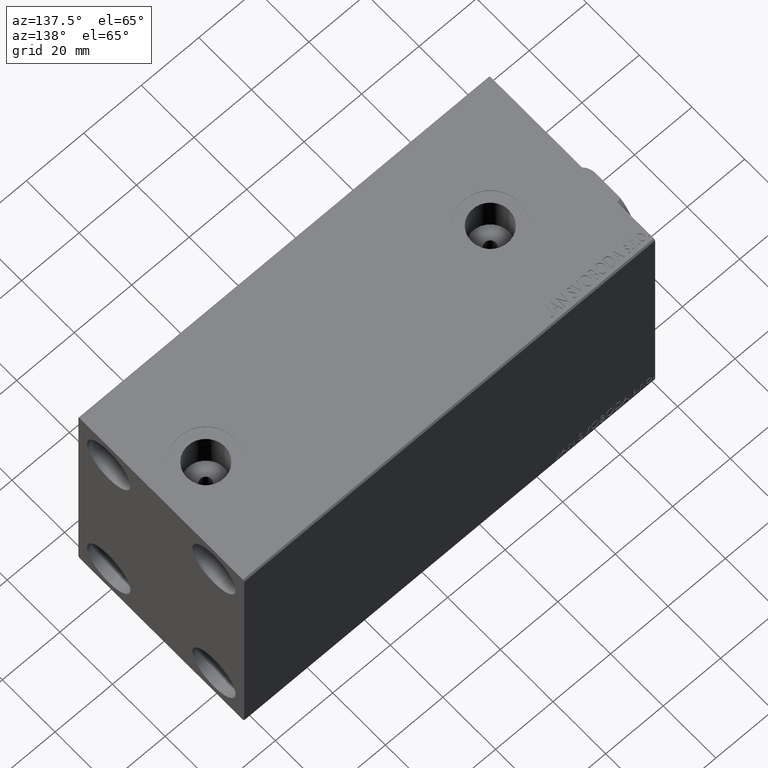
[diagram: clean part render]
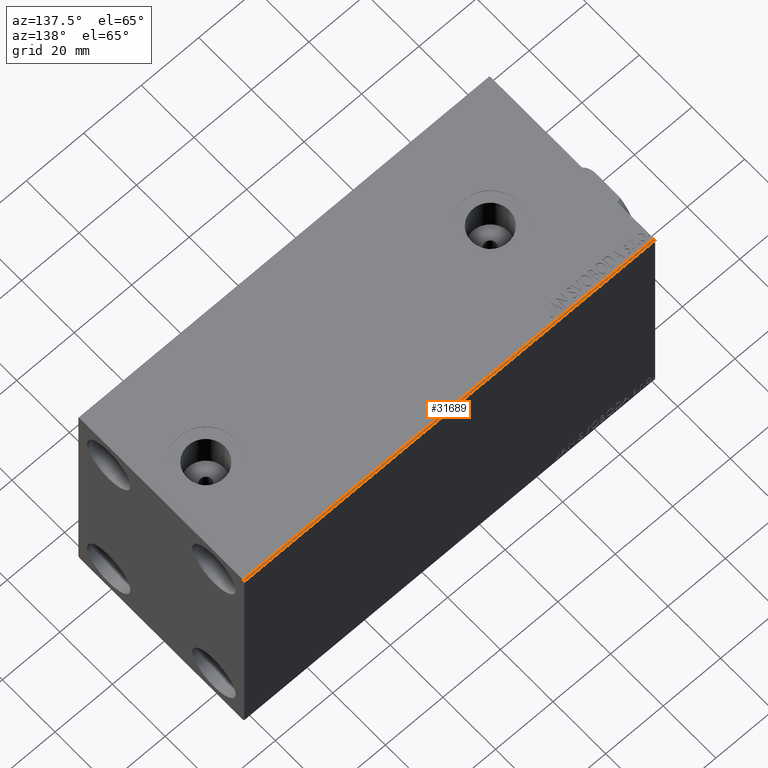
[diagram: same view with one face highlighted and labeled with its STEP entity id]
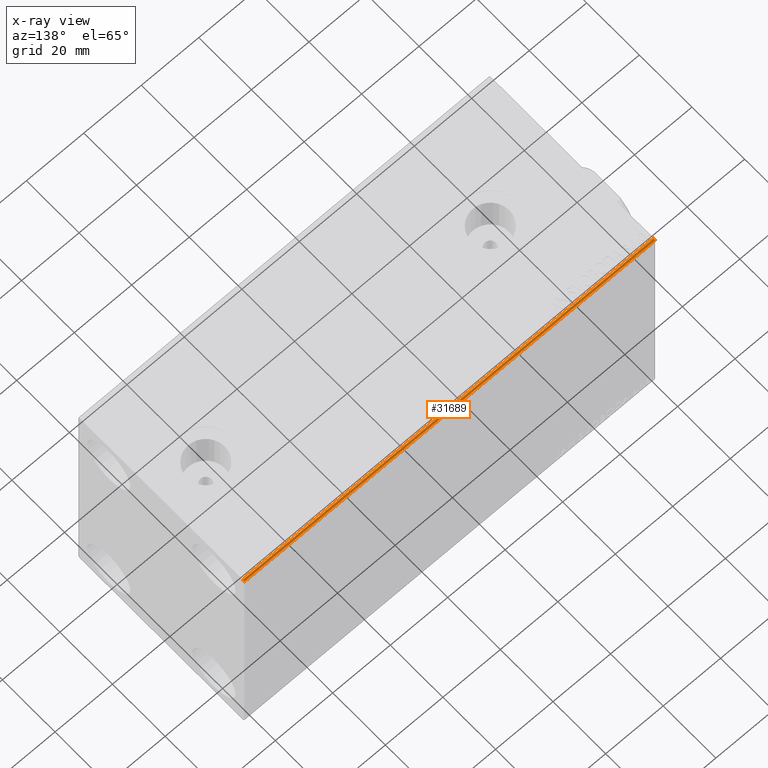
[diagram: x-ray of the same camera — body ghosted, the highlighted face saturated]
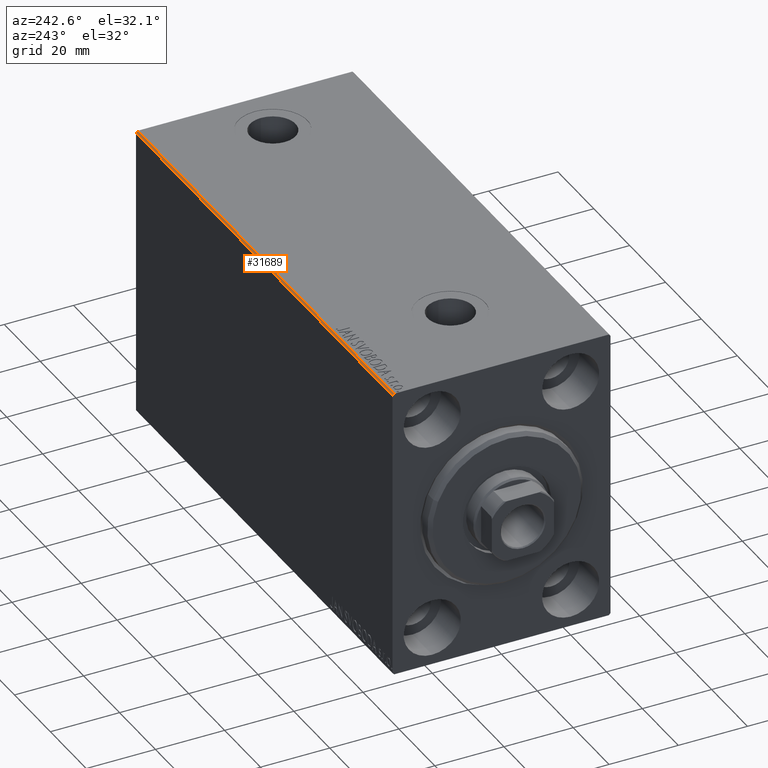
[diagram: same view with one face highlighted and labeled with its STEP entity id]
A machine part, auxiliary view. The second image highlights one B-rep face of the part: STEP entity #31689.
The next image is the same camera in x-ray: the body ghosted, the highlighted face saturated — about 0% of this face is hidden behind the body in this view.
A second angle (auxiliary view) of the same face is appended — the face is thin or edge-on in the first view.
In plain terms, the highlighted planar face has unit normal (-0, -0.7071, -0.7071).
Its self-contained STEP definition (entity closure, byte-faithful):
#281 = CARTESIAN_POINT ( 'NONE',  ( 143.0000000000000000, 31.00000000000002842, 42.50000000000000711 ) ) ;
#1971 = VECTOR ( 'NONE', #43266, 1000.000000000000000 ) ;
#3407 = EDGE_CURVE ( 'NONE', #39728, #28543, #28463, .T. ) ;
#3637 = LINE ( 'NONE', #281, #5047 ) ;
#3683 = CARTESIAN_POINT ( 'NONE',  ( 0.000000000000000000, 31.00000000000002842, 42.50000000000000711 ) ) ;
#4317 = ORIENTED_EDGE ( 'NONE', *, *, #3407, .F. ) ;
#4463 = VERTEX_POINT ( 'NONE', #30065 ) ;
#4521 = LINE ( 'NONE', #27853, #22523 ) ;
#5047 = VECTOR ( 'NONE', #20533, 1000.000000000000000 ) ;
#5059 = FACE_OUTER_BOUND ( 'NONE', #42969, .T. ) ;
#5511 = EDGE_CURVE ( 'NONE', #40923, #39728, #26376, .T. ) ;
#5599 = ORIENTED_EDGE ( 'NONE', *, *, #39076, .F. ) ;
#6851 = ORIENTED_EDGE ( 'NONE', *, *, #20388, .F. ) ;
#6991 = CARTESIAN_POINT ( 'NONE',  ( 0.000000000000000000, 31.00000000000002842, 42.50000000000000711 ) ) ;
#8697 = CARTESIAN_POINT ( 'NONE',  ( 143.0000000000000000, 31.50000000000000000, 42.00000000000000711 ) ) ;
#12171 = DIRECTION ( 'NONE',  ( -0.000000000000000000, -0.7071067811865671127, -0.7071067811865279218 ) ) ;
#13568 = VECTOR ( 'NONE', #18250, 1000.000000000000000 ) ;
#15671 = CARTESIAN_POINT ( 'NONE',  ( 143.0000000000000000, 31.50000000000000000, 42.00000000000000711 ) ) ;
#18084 = DIRECTION ( 'NONE',  ( -0.000000000000000000, -0.7071067811865279218, 0.7071067811865671127 ) ) ;
#18250 = DIRECTION ( 'NONE',  ( 1.000000000000000000, 0.000000000000000000, 0.000000000000000000 ) ) ;
#20388 = EDGE_CURVE ( 'NONE', #4463, #40923, #3637, .T. ) ;
#20533 = DIRECTION ( 'NONE',  ( -1.000000000000000000, 0.000000000000000000, 0.000000000000000000 ) ) ;
#22287 = AXIS2_PLACEMENT_3D ( 'NONE', #28840, #12171, #25736 ) ;
#22523 = VECTOR ( 'NONE', #18084, 1000.000000000000000 ) ;
#25736 = DIRECTION ( 'NONE',  ( -1.000000000000000000, 0.000000000000000000, 0.000000000000000000 ) ) ;
#25964 = PLANE ( 'NONE',  #22287 ) ;
#26376 = LINE ( 'NONE', #6991, #1971 ) ;
#27853 = CARTESIAN_POINT ( 'NONE',  ( 143.0000000000000000, 36.75000000000088107, 36.74999999999884182 ) ) ;
#28463 = LINE ( 'NONE', #8697, #13568 ) ;
#28543 = VERTEX_POINT ( 'NONE', #15671 ) ;
#28840 = CARTESIAN_POINT ( 'NONE',  ( 143.0000000000000000, 31.00000000000002842, 42.50000000000000711 ) ) ;
#30065 = CARTESIAN_POINT ( 'NONE',  ( 143.0000000000000000, 31.00000000000002842, 42.50000000000000711 ) ) ;
#31689 = ADVANCED_FACE ( 'NONE', ( #5059 ), #25964, .F. ) ;
#35309 = CARTESIAN_POINT ( 'NONE',  ( 0.000000000000000000, 31.50000000000000000, 42.00000000000000711 ) ) ;
#38446 = ORIENTED_EDGE ( 'NONE', *, *, #5511, .F. ) ;
#39076 = EDGE_CURVE ( 'NONE', #28543, #4463, #4521, .T. ) ;
#39728 = VERTEX_POINT ( 'NONE', #35309 ) ;
#40923 = VERTEX_POINT ( 'NONE', #3683 ) ;
#42969 = EDGE_LOOP ( 'NONE', ( #5599, #4317, #38446, #6851 ) ) ;
#43266 = DIRECTION ( 'NONE',  ( -0.000000000000000000, 0.7071067811865279218, -0.7071067811865671127 ) ) ;